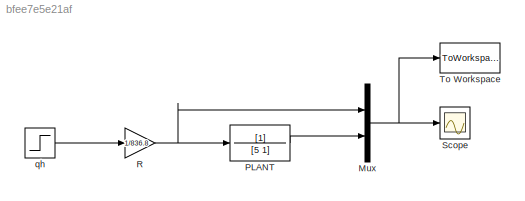
MODEL slx_bfee7e5e21af
KIND model
BLOCK [Mux] Mux
  DisplayOption = bar
  Inputs = 2
  Ports = [2, 1]
BLOCK [TransferFcn] PLANT
  Denominator = [5 1]
BLOCK [Gain] R
  Gain = 1/836.8
  OutDataTypeStr = Inherit: Inherit via internal rule
  ParamDataTypeStr = Inherit: Inherit via internal rule
  SaturateOnIntegerOverflow = off
BLOCK [Scope] Scope
  Floating = off
  NumInputPorts = 1
  Ports = [1]
  ShowLegends = off
BLOCK [ToWorkspace] To Workspace
  FixptAsFi = on
  MaxDataPoints = inf
  Ports = [1]
  SampleTime = -1
  Save2DSignal = 3-D array (concatenate along third dimension)
  SaveFormat = Timeseries
  VariableName = output1b
BLOCK [Step] qh
  After = 2520
  SampleTime = 0
NET Mux:1 -> Scope:1, To Workspace:1
LINE PLANT:1 -> Mux:2
NET R:1 -> Mux:1, PLANT:1
LINE qh:1 -> R:1
note: NET lines group one-source signal fan-out (src -> all destinations, sorted); 1:1 wires keep LINE
